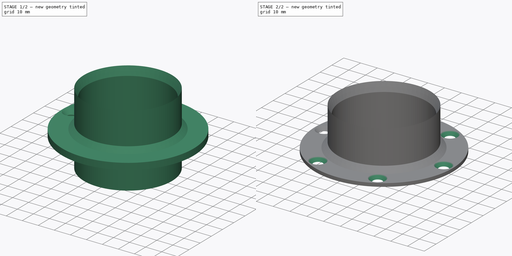
[diagram: build sequence overview — one tinted view per stage of 2, left to right]
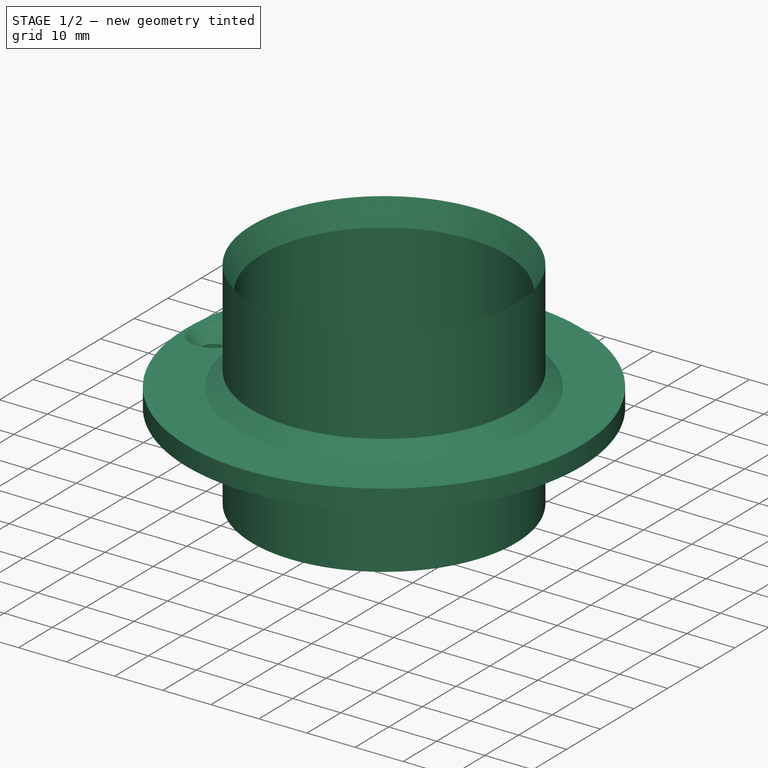
[diagram: stage 1 of 2 — iso view after this stage's code; geometry added in this stage tinted green]
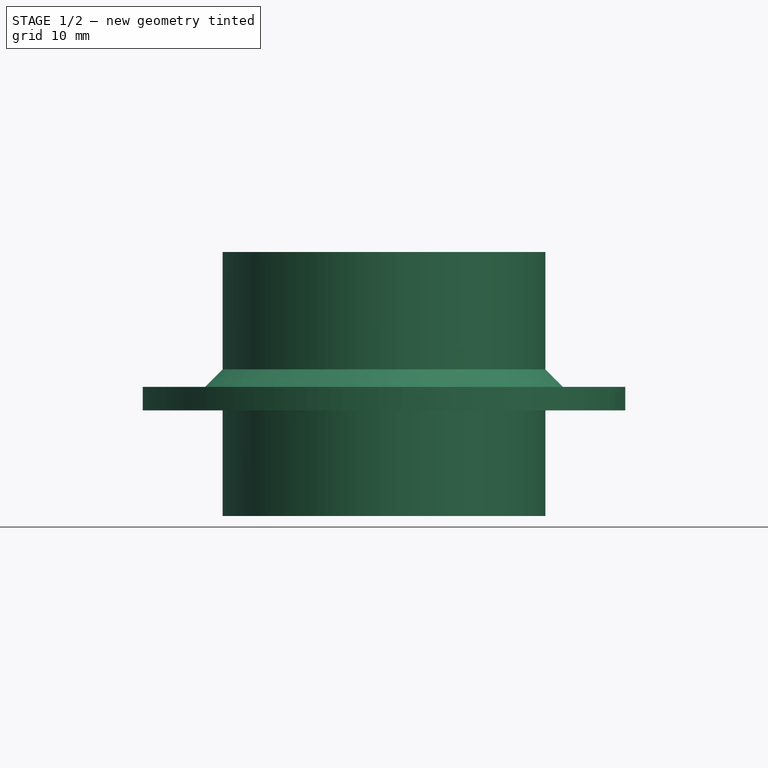
[diagram: stage 1 of 2 — front view after this stage's code; geometry added in this stage tinted green]
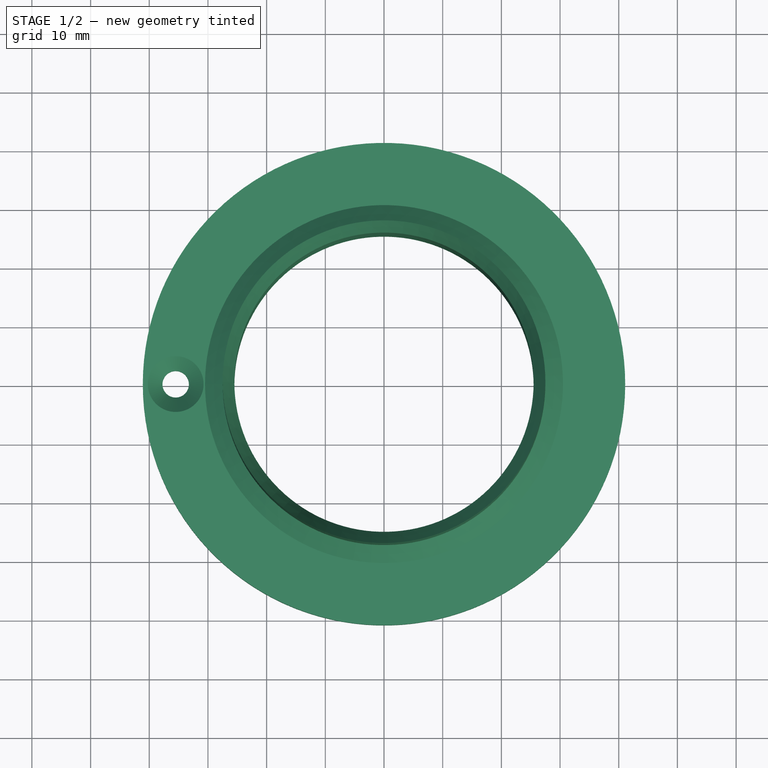
[diagram: stage 1 of 2 — top view after this stage's code; geometry added in this stage tinted green]
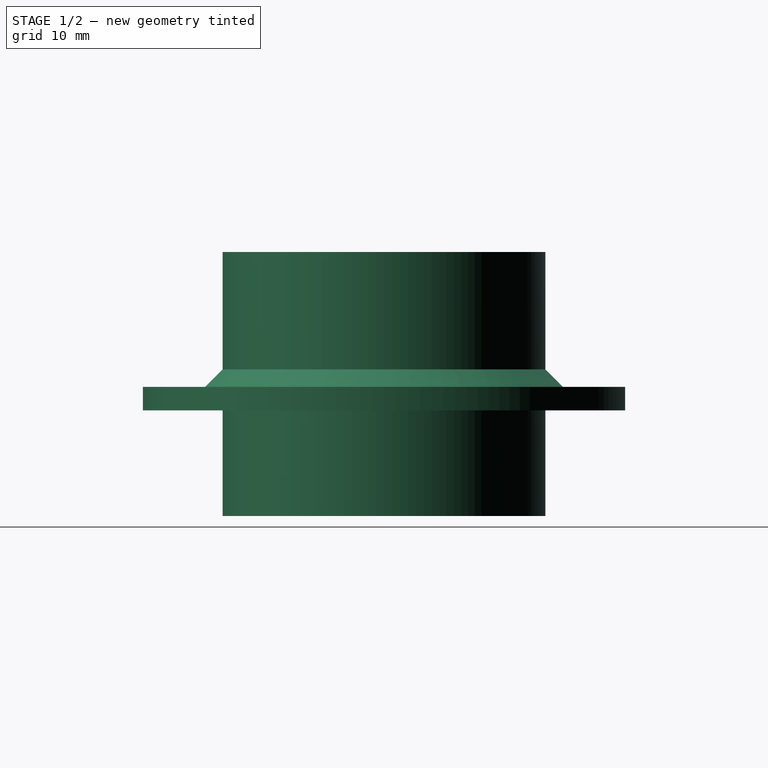
[diagram: stage 1 of 2 — right view after this stage's code; geometry added in this stage tinted green]
FCSTD DOCUMENT  (FreeCAD 0.19R23141 (Git))
Label: vacuum_hole_fitting
License: All rights reserved
LicenseURL: http://en.wikipedia.org/wiki/All_rights_reserved
objects: Sketcher::SketchObject×3, PartDesign::Revolution×1, PartDesign::Hole×1, PartDesign::PolarPattern×1, PartDesign::Pocket×1, PartDesign::Body×1
note: 11 computed .brp shape members not serialized (recipe doc carries the construction recipe); baked Part::Feature solids carry a one-line shape summary decoded from their .brp

FEATURE [Sketcher::SketchObject] Sketch
  MapMode = 5
  Placement = pos=(0,0,0) rot=(1,0,0;1.5708rad)
  Support = -> [XZ_Plane]
  sketch-geometry (10):
    g0: LineSegment StartX=-27.5 StartY=18 StartZ=0 EndX=-27.5 EndY=0 EndZ=0
    g1: LineSegment StartX=-27.5 StartY=0 StartZ=0 EndX=-25.5 EndY=0 EndZ=0
    g2: LineSegment StartX=-25.5 StartY=0 StartZ=0 EndX=-25.5 EndY=40 EndZ=0
    g3: LineSegment StartX=-27.5 StartY=18 StartZ=0 EndX=-41.1021 EndY=18 EndZ=0
    g4: LineSegment StartX=-41.1021 StartY=18 StartZ=0 EndX=-41.1021 EndY=22 EndZ=0
    g5: LineSegment StartX=-27.5 StartY=25 StartZ=0 EndX=-27.5 EndY=45 EndZ=0
    g6: LineSegment StartX=-27.5 StartY=45 StartZ=0 EndX=-25.5 EndY=40 EndZ=0
    g7: LineSegment [constr] StartX=-27.5 StartY=18 StartZ=0 EndX=-27.5 EndY=25 EndZ=0
    g8: LineSegment StartX=-41.1021 StartY=22 StartZ=0 EndX=-30.5 EndY=22 EndZ=0
    g9: LineSegment StartX=-30.5 StartY=22 StartZ=0 EndX=-27.5 EndY=25 EndZ=0
  constraints (28):
    c: Vertical(g0)
    c: DistanceX(g0,g-1) = 27.5
    c: PointOnObject(g0,g-1)
    c: Coincident(g1,g0)
    c: PointOnObject(g1,g-1)
    c: Coincident(g2,g1)
    c: Vertical(g2)
    c: DistanceY(g0,g0) = 18
    c: Coincident(g0,g3)
    c: Horizontal(g3)
    c: Coincident(g3,g4)
    c: Vertical(g4)
    c: DistanceY(g4,g4) = 4
    c: Vertical(g5)
    c: DistanceX(g1,g1) = 2
    c: Coincident(g6,g5)
    c: Coincident(g6,g2)
    c: DistanceY(g0,g5) = 45
    c: DistanceY(g0,g2) = 40
    c: Coincident(g7,g0)
    c: Vertical(g7)
    c: Coincident(g7,g5)
    c: Coincident(g4,g8)
    c: Horizontal(g8)
    c: Coincident(g8,g9)
    c: Coincident(g9,g5)
    c: Angle(g5,g9) = 2.35619
    c: DistanceX(g8,g5) = 3
FEATURE [PartDesign::Revolution] Revolution
  Angle = 360
  Axis = (0,2e-16,1)
  Base = (0,0,0)
  Placement = pos=(0,0,0) rot=(1,0,0;1.5708rad)
  Profile = -> Sketch
  ReferenceAxis = -> Sketch [V_Axis]
FEATURE [Sketcher::SketchObject] Sketch001
  MapMode = 5
  Placement = pos=(0,1.46e-14,22) rot=(0,0,1;3.14159rad)
  Support = -> [Revolution]
  sketch-geometry (1):
    g0: Circle CenterX=35.5 CenterY=0 CenterZ=0 NormalX=0 NormalY=0 NormalZ=1 AngleXU=0 Radius=4
  constraints (3):
    c: PointOnObject(g0,g-1)
    c: DistanceX(g-1,g0) = 35.5
    c: Radius(g0) = 4
FEATURE [PartDesign::Hole] Hole
  BaseFeature = -> Revolution
  Depth = 25
  DepthType = 0
  Diameter = 4.5
  DrillPoint = 1
  DrillPointAngle = 118
  HoleCutCountersinkAngle = 90
  HoleCutDepth = 0
  HoleCutDiameter = 9.5
  HoleCutType = 2
  ModelActualThread = false
  Placement = pos=(0,0,0) rot=(1,0,0;1.5708rad)
  Profile = -> Sketch001
  Tapered = false
  TaperedAngle = 90
  ThreadAngle = 0
  ThreadClass = 0
  ThreadCutOffInner = 0
  ThreadCutOffOuter = 0
  ThreadDirection = 0
  ThreadFit = 0
  ThreadPitch = 0
  ThreadSize = 0
  ThreadType = 0
  Threaded = false
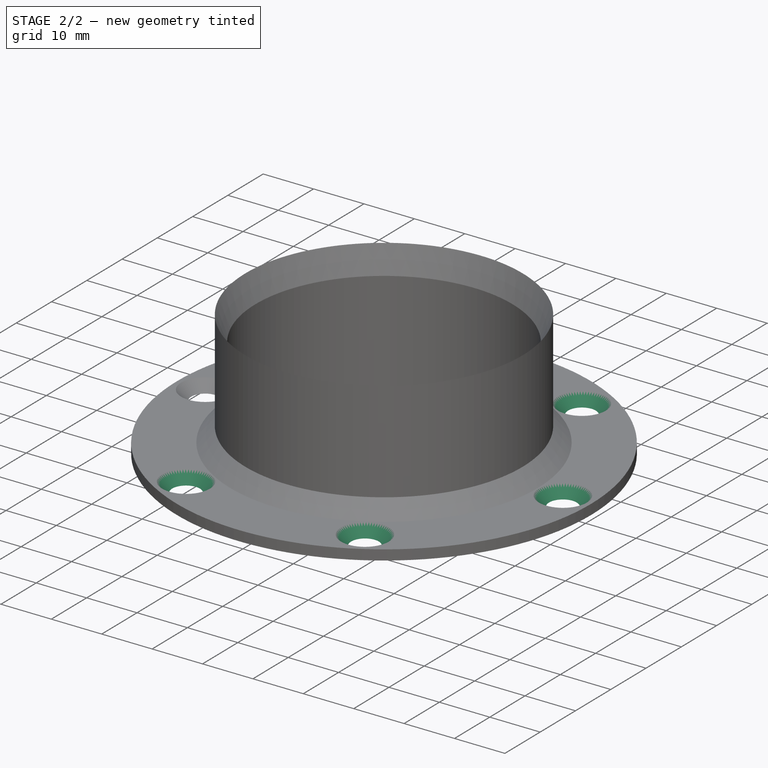
[diagram: stage 2 of 2 — iso view after this stage's code; geometry added in this stage tinted green]
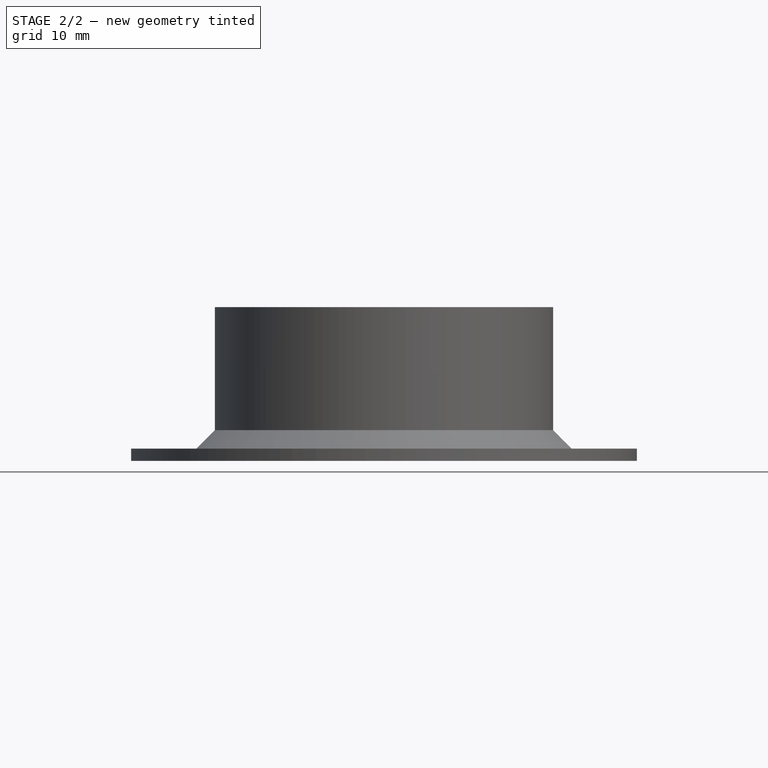
[diagram: stage 2 of 2 — front view after this stage's code; geometry added in this stage tinted green]
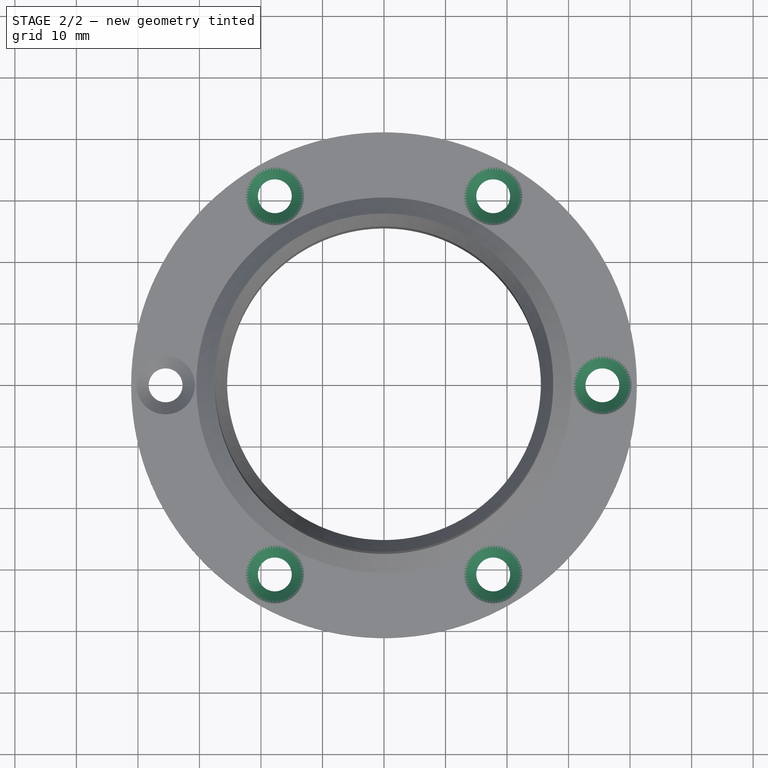
[diagram: stage 2 of 2 — top view after this stage's code; geometry added in this stage tinted green]
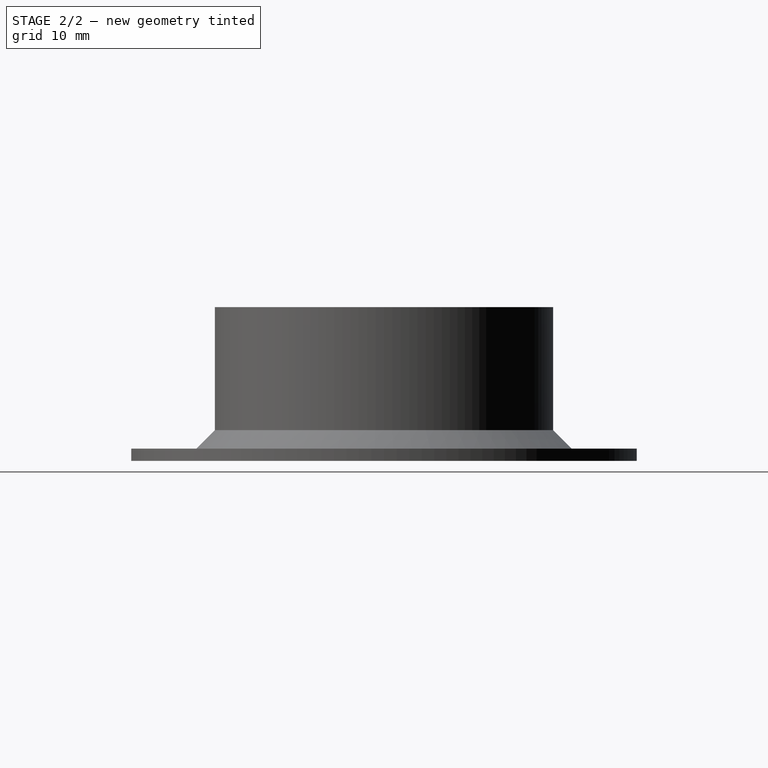
[diagram: stage 2 of 2 — right view after this stage's code; geometry added in this stage tinted green]
FEATURE [PartDesign::PolarPattern] PolarPattern
  Angle = 360
  Axis = -> Sketch001 [N_Axis]
  BaseFeature = -> Hole
  Occurrences = 6
  Originals = -> [Hole]
  Placement = pos=(0,0,0) rot=(1,0,0;1.5708rad)
FEATURE [Sketcher::SketchObject] Sketch002
  MapMode = 5
  Placement = pos=(0,0,0) rot=(0.57735,0.57735,0.57735;2.0944rad)
  Support = -> [YZ_Plane]
  sketch-geometry (6):
    g0: LineSegment StartX=-55 StartY=20 StartZ=0 EndX=55 EndY=20 EndZ=0
    g1: LineSegment StartX=55 StartY=20 StartZ=0 EndX=55 EndY=-50.9178 EndZ=0
    g2: LineSegment StartX=55 StartY=-50.9178 StartZ=0 EndX=-55 EndY=-50.9178 EndZ=0
    g3: LineSegment StartX=-55 StartY=-50.9178 StartZ=0 EndX=-55 EndY=20 EndZ=0
    g4: LineSegment [constr] StartX=-55 StartY=20 StartZ=0 EndX=0 EndY=0 EndZ=0
    g5: LineSegment [constr] StartX=0 StartY=0 StartZ=0 EndX=55 EndY=20 EndZ=0
  constraints (15):
    c: Coincident(g0,g1)
    c: Coincident(g1,g2)
    c: Coincident(g2,g3)
    c: Coincident(g3,g0)
    c: Horizontal(g0)
    c: Horizontal(g2)
    c: Vertical(g1)
    c: Vertical(g3)
    c: DistanceY(g-1,g0) = 20
    c: Coincident(g0,g4)
    c: Coincident(g4,g-1)
    c: Coincident(g4,g5)
    c: Coincident(g5,g0)
    c: Equal(g5,g4)
    c: DistanceX(g0,g0) = 110
FEATURE [PartDesign::Pocket] Pocket
  BaseFeature = -> PolarPattern
  Length = 5
  Length2 = 100
  Midplane = true
  Placement = pos=(0,0,0) rot=(1,0,0;1.5708rad)
  Profile = -> Sketch002
  Type = 1
FEATURE [PartDesign::Body] Body
  Group = -> [Sketch,Revolution,Sketch001,Hole,PolarPattern,Sketch002,Pocket]
  Origin = -> Origin
  Tip = -> Pocket
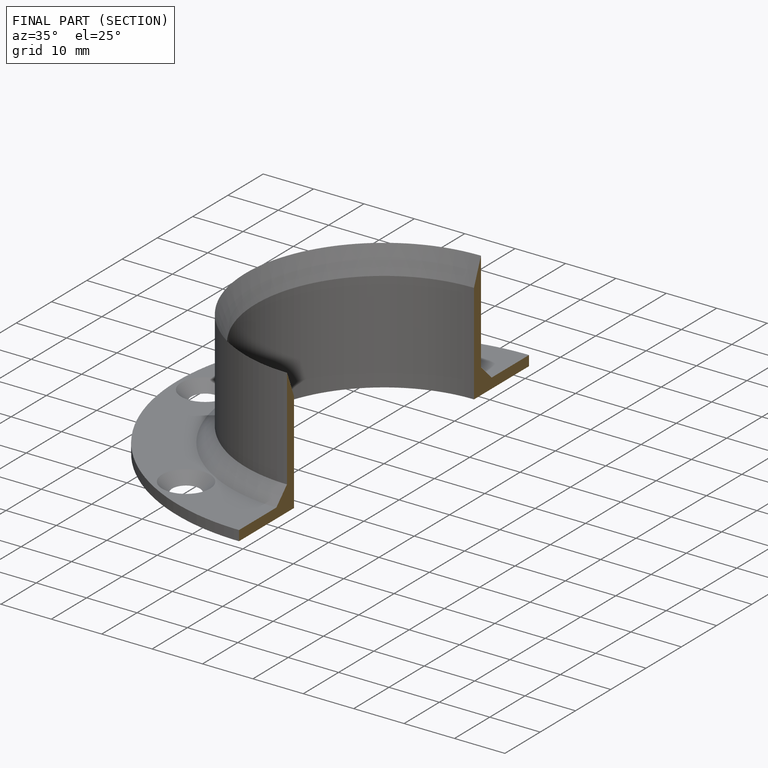
[diagram: finished part — half-section view (interior)]
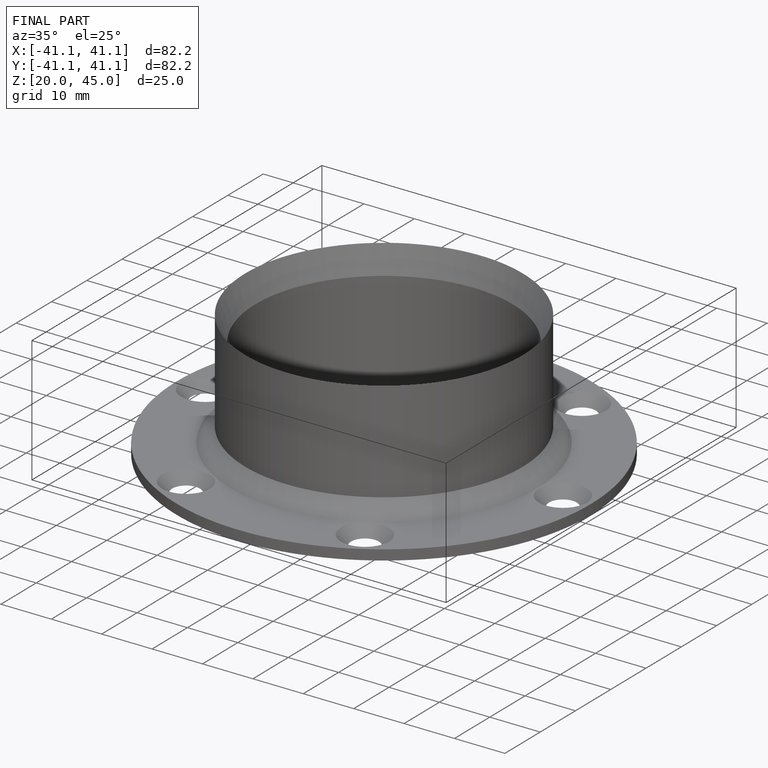
[diagram: finished part — iso view with bounding-box wireframe]
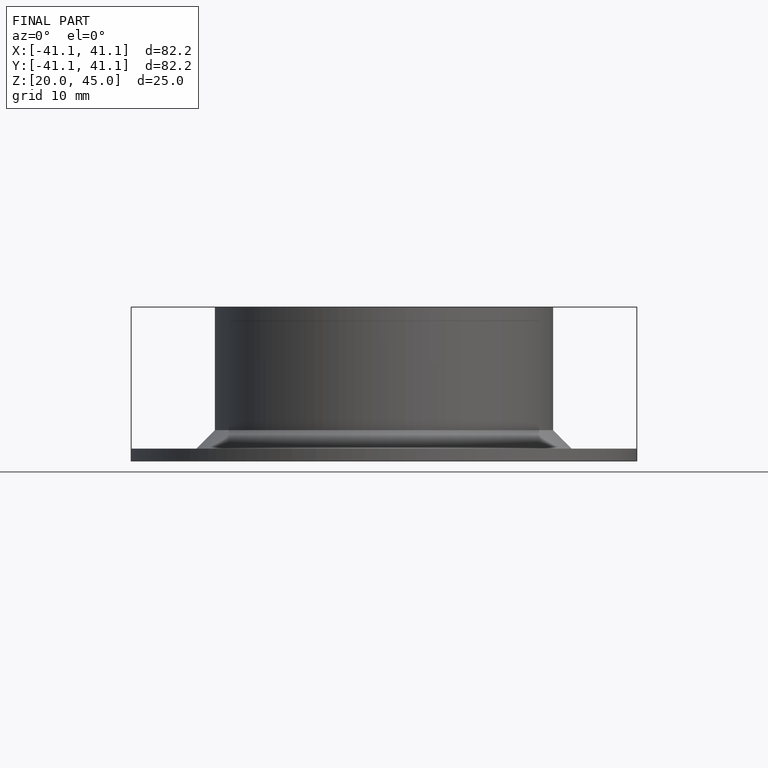
[diagram: finished part — front view with bounding-box wireframe]
